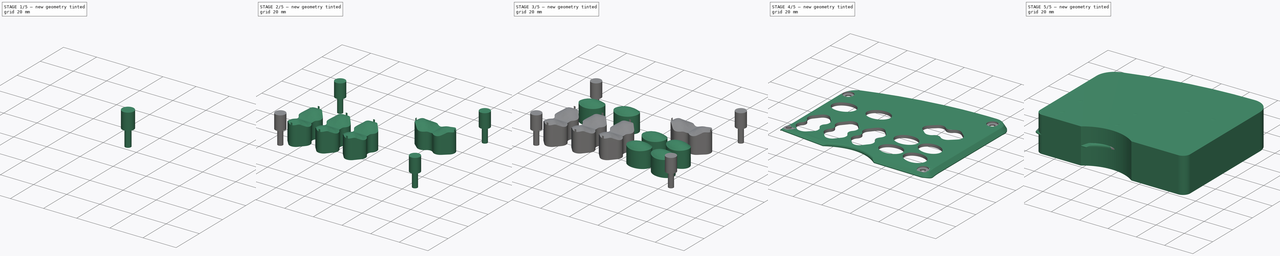
[diagram: build sequence overview — one tinted view per stage of 5, left to right]
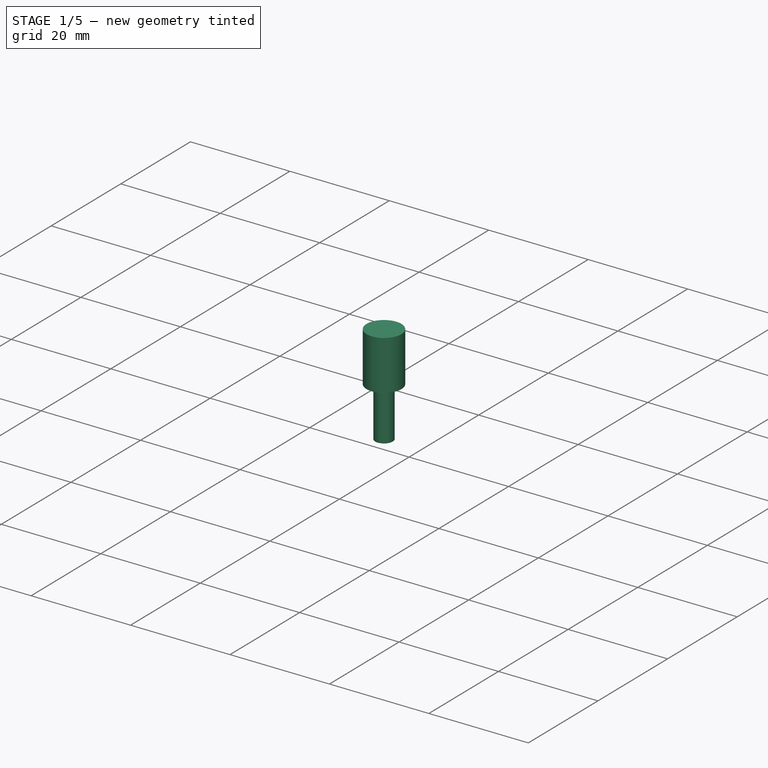
[diagram: stage 1 of 5 — iso view after this stage's code; geometry added in this stage tinted green]
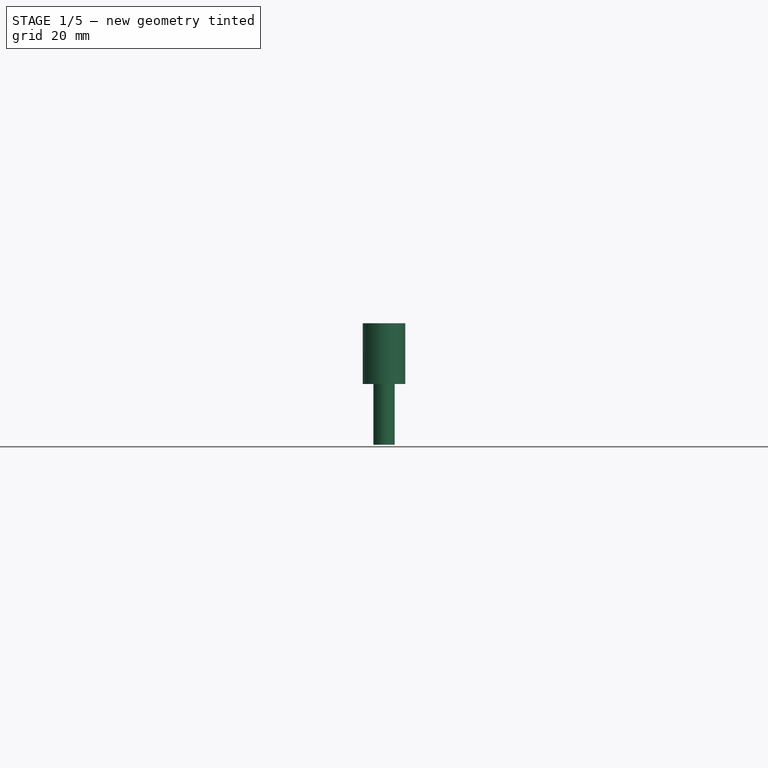
[diagram: stage 1 of 5 — front view after this stage's code; geometry added in this stage tinted green]
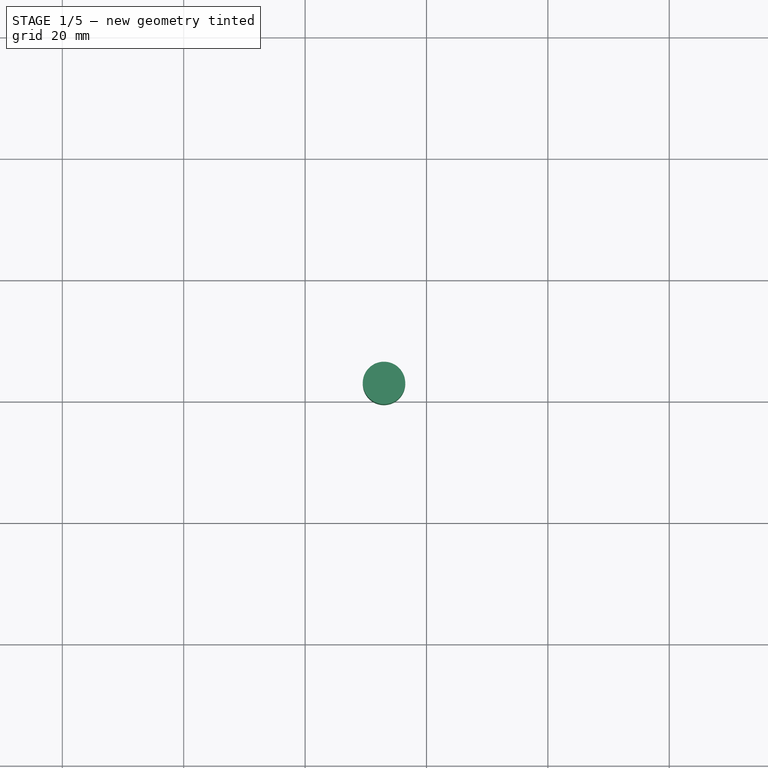
[diagram: stage 1 of 5 — top view after this stage's code; geometry added in this stage tinted green]
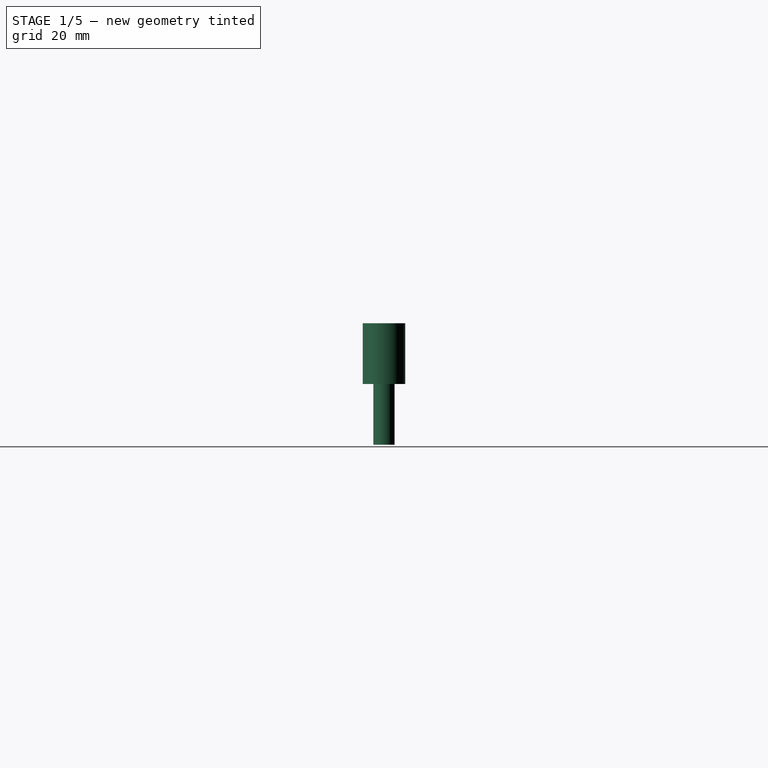
[diagram: stage 1 of 5 — right view after this stage's code; geometry added in this stage tinted green]
FCSTD DOCUMENT  (FreeCAD 0.16R6698 (Git))
Label: left_cover
License: All rights reserved
LicenseURL: http://en.wikipedia.org/wiki/All_rights_reserved
objects: Part::FeaturePython×14, Part::Feature×9, Sketcher::SketchObject×4, PartDesign::Pad×4, Part::MultiFuse×2, Part::Cut×2, Part::Chamfer×1, PartDesign::Fillet×1, App::DocumentObjectGroup×1, Part::Cylinder×1, Part::Mirroring×1
note: 43 computed .brp shape members not serialized (recipe doc carries the construction recipe); baked Part::Feature solids carry a one-line shape summary decoded from their .brp

FEATURE [App::DocumentObjectGroup] Group  label="assembly"
  Group = -> [left_buttons_01,Part__Feature005,Part__Feature]
FEATURE [Part::Cylinder] Cylinder
  Angle = 360
  Height = 10
  Placement = pos=(-45.88,20.86,-1) rot=(0,0,1;0rad)
  Radius = 1.75
FEATURE [Sketcher::SketchObject] Sketch004
  ExternalGeometry = -> [Cylinder]
  Placement = pos=(-45.88,20.86,9) rot=(0,0,1;0rad)
  Support = -> Cylinder [Face2]
  sketch-geometry (1):
    g0: Circle CenterX=0 CenterY=0 CenterZ=0 NormalX=0 NormalY=0 NormalZ=1 Radius=3.5
  constraints (2):
    c: Coincident(g0,g-1)
    c: Radius(g0) = 3.5
FEATURE [PartDesign::Pad] Pad003
  Length = 10
  Length2 = 100
  Placement = pos=(-45.88,20.86,-1) rot=(0,0,1;0rad)
  Sketch = -> Sketch004
  Type = 0
FEATURE [Part::FeaturePython] Clone029  label="Clone of Pad003"  # Draft clone (typed FeaturePython)
  Objects = -> [Pad003]
  Placement = pos=(45,35.25,-1) rot=(0,0,1;0rad)
  Scale = (1,1,1)
FEATURE [Part::FeaturePython] Clone030  label="Clone of Clone of Pad003"  # Draft clone (typed FeaturePython)
  Objects = -> [Clone029]
  Placement = pos=(46.98,-37.2,-1) rot=(0,0,1;0rad)
  Scale = (1,1,1)
FEATURE [Part::FeaturePython] Clone031  label="Clone of Clone of Clone of Pad003"  # Draft clone (typed FeaturePython)
  Objects = -> [Clone030]
  Placement = pos=(-47,-37.2,0.7) rot=(0,0,1;0rad)
  Scale = (1,1,1)
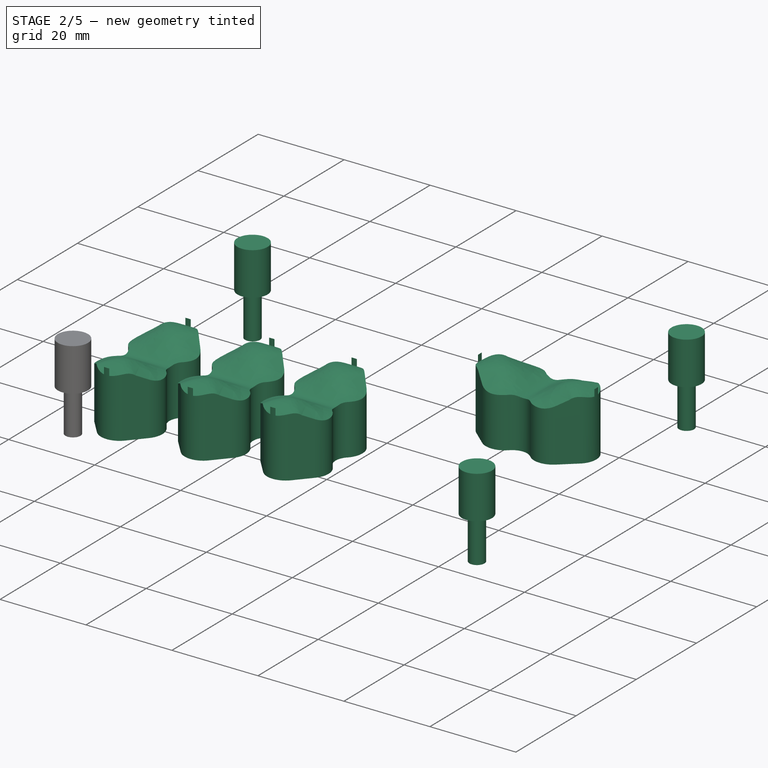
[diagram: stage 2 of 5 — iso view after this stage's code; geometry added in this stage tinted green]
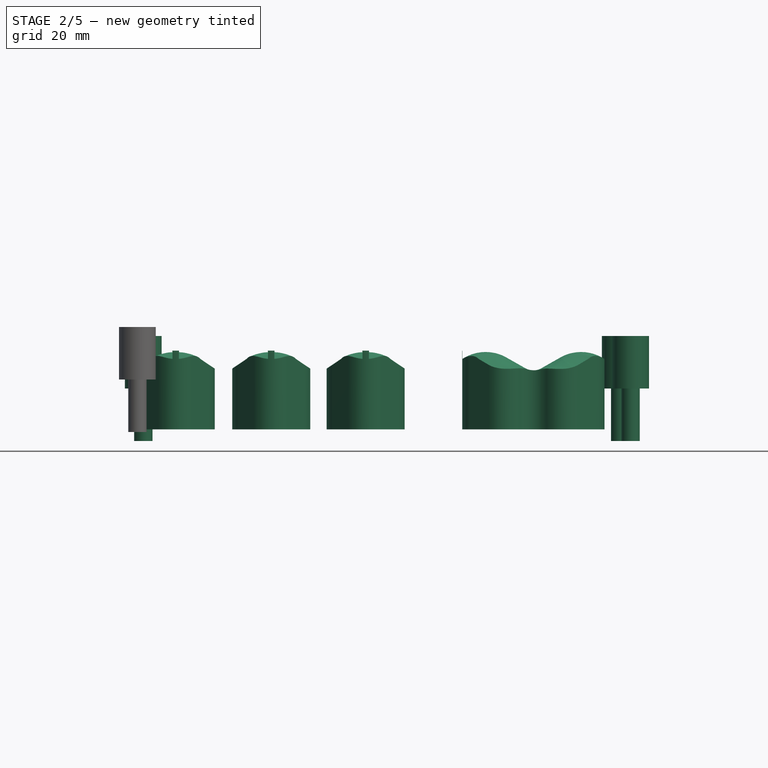
[diagram: stage 2 of 5 — front view after this stage's code; geometry added in this stage tinted green]
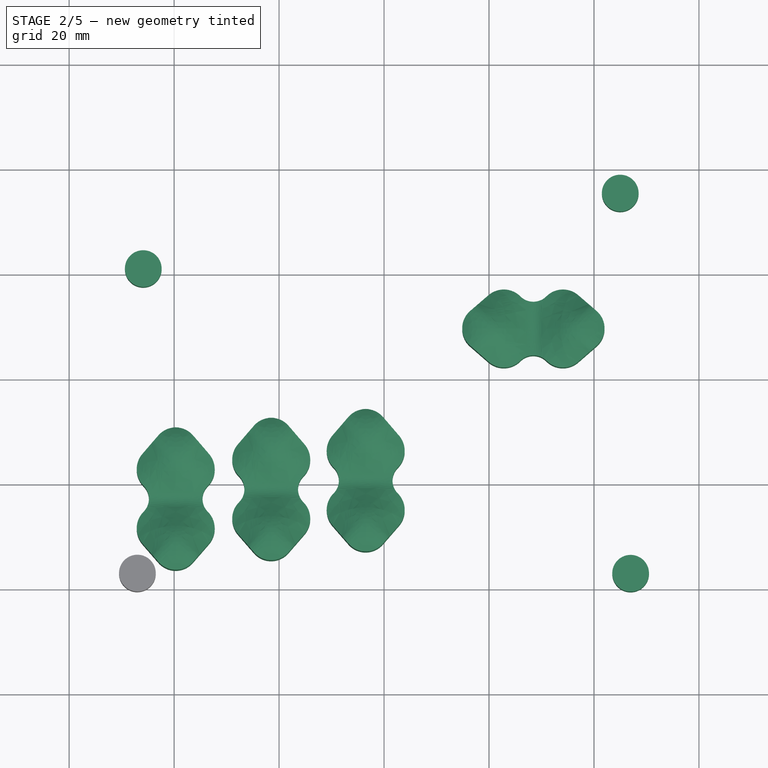
[diagram: stage 2 of 5 — top view after this stage's code; geometry added in this stage tinted green]
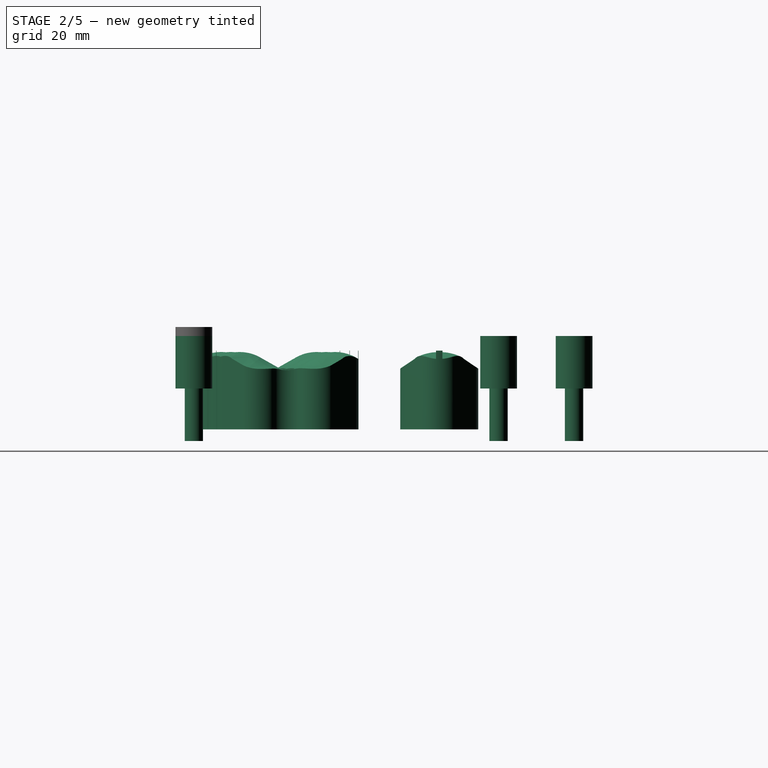
[diagram: stage 2 of 5 — right view after this stage's code; geometry added in this stage tinted green]
FEATURE [Part::FeaturePython] Clone  label="sw4"  # Draft clone (typed FeaturePython)
  Objects = -> [Part__Feature008]
  Placement = pos=(28.45,9.55,0) rot=(0,0,1;1.5708rad)
  Scale = (1,1,1)
FEATURE [Part::FeaturePython] Clone026  label="sw3"  # Draft clone (typed FeaturePython)
  Objects = -> [Part__Feature008]
  Placement = pos=(-3.5,-19.4,0) rot=(0,0,1;0rad)
  Scale = (1,1,1)
FEATURE [Part::FeaturePython] Clone027  label="sw2"  # Draft clone (typed FeaturePython)
  Objects = -> [Part__Feature008]
  Placement = pos=(-21.5,-21.07,0) rot=(0,0,1;0rad)
  Scale = (1,1,1)
FEATURE [Part::FeaturePython] Clone028  label="sw1"  # Draft clone (typed FeaturePython)
  Objects = -> [Part__Feature008]
  Placement = pos=(-39.7,-22.9,0) rot=(0,0,1;0rad)
  Scale = (1,1,1)
FEATURE [Part::MultiFuse] Fusion001
  Shapes = -> [Clone031,Clone030,Clone029,Pad003]
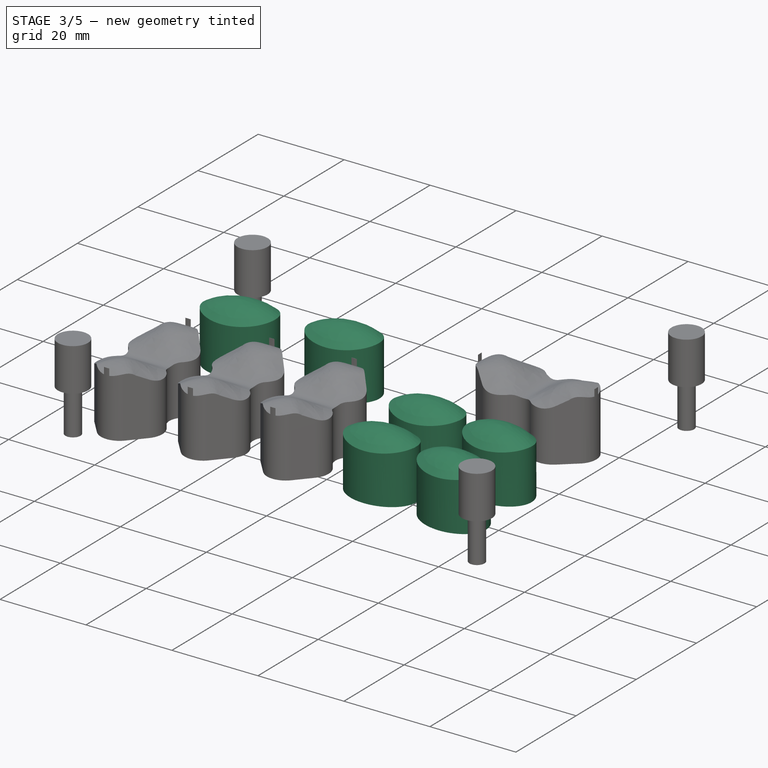
[diagram: stage 3 of 5 — iso view after this stage's code; geometry added in this stage tinted green]
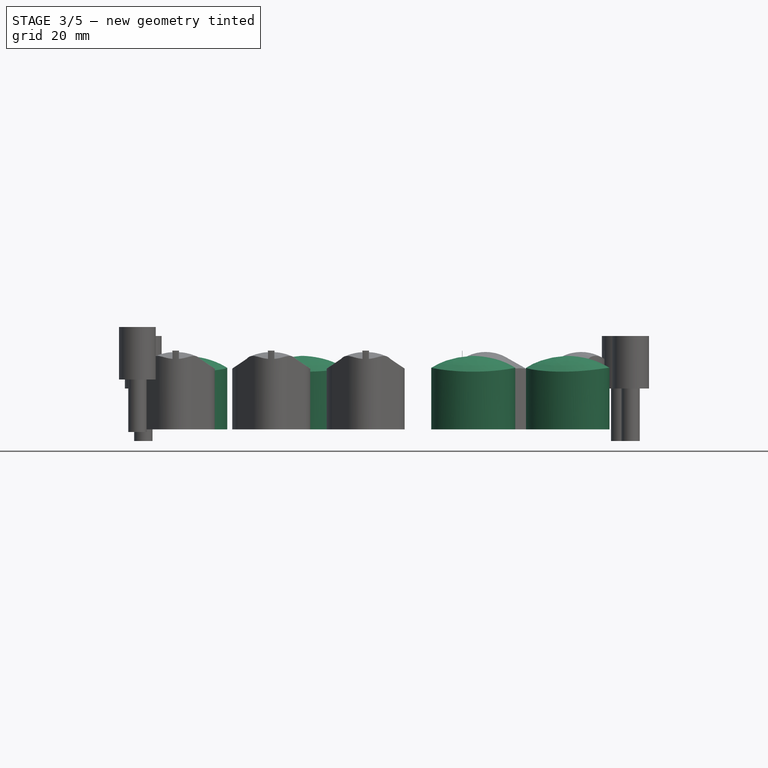
[diagram: stage 3 of 5 — front view after this stage's code; geometry added in this stage tinted green]
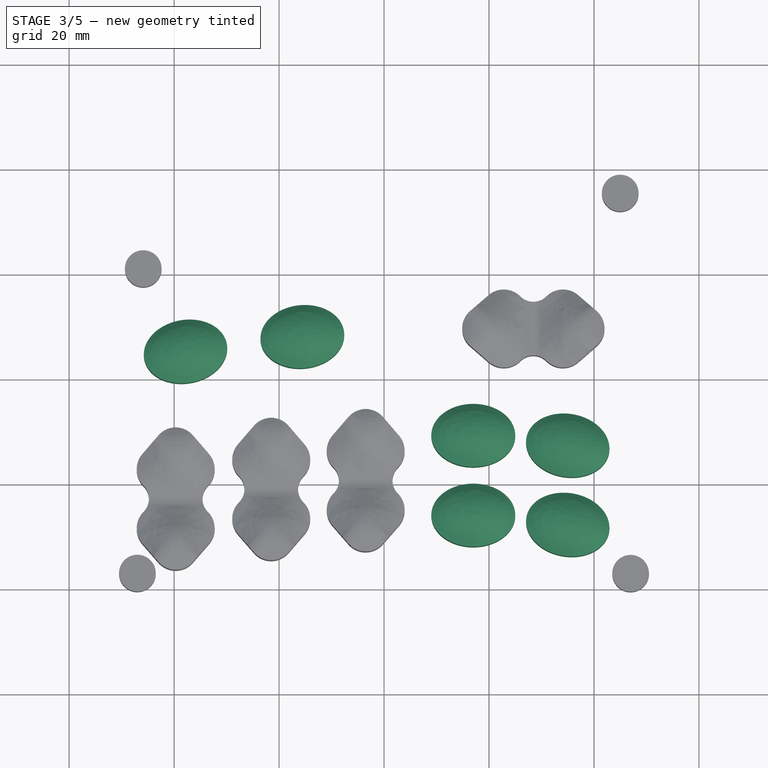
[diagram: stage 3 of 5 — top view after this stage's code; geometry added in this stage tinted green]
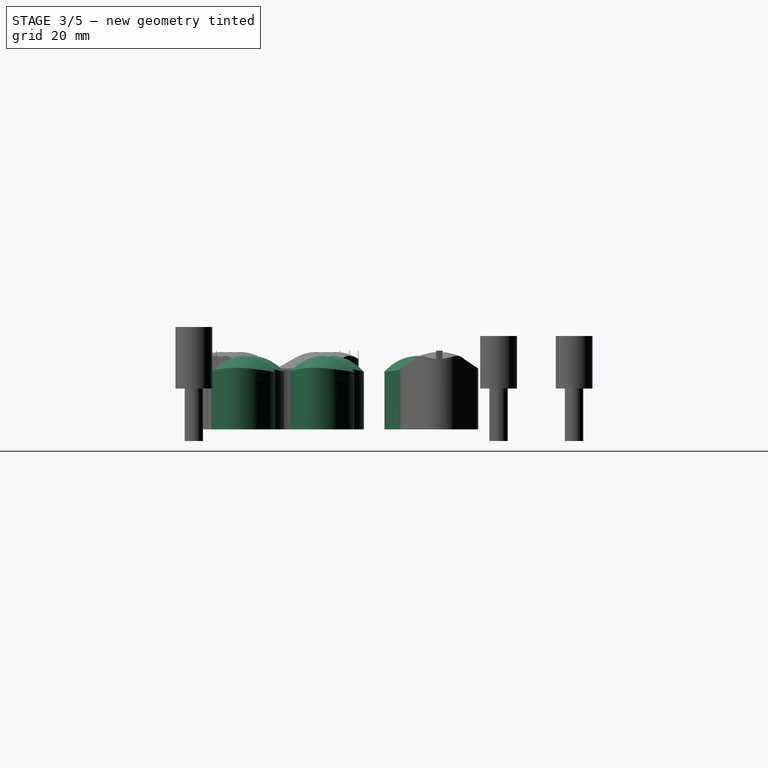
[diagram: stage 3 of 5 — right view after this stage's code; geometry added in this stage tinted green]
FEATURE [Part::Feature] Part__Feature007  label="but_hole_base"
  shape: bbox 34.77 x 29.5 x 14 mm, 4 faces (baked)
FEATURE [Part::Feature] Part__Feature008  label="sw_hole_base"
  shape: bbox 16 x 33.13 x 19.64 mm, 30 faces (baked)
FEATURE [Part::FeaturePython] Clone020  label="but1"  # Draft clone (typed FeaturePython)
  Objects = -> [Part__Feature007]
  Placement = pos=(35,-27.8,0) rot=(0,0,-1;0.174533rad)
  Scale = (1,1,1)
FEATURE [Part::FeaturePython] Clone021  label="but2"  # Draft clone (typed FeaturePython)
  Objects = -> [Part__Feature007]
  Placement = pos=(17,-10.8,0) rot=(0,0,1;0rad)
  Scale = (1,1,1)
FEATURE [Part::FeaturePython] Clone022  label="but3"  # Draft clone (typed FeaturePython)
  Objects = -> [Part__Feature007]
  Placement = pos=(17,-26,0) rot=(0,0,1;0rad)
  Scale = (1,1,1)
FEATURE [Part::FeaturePython] Clone023  label="but4"  # Draft clone (typed FeaturePython)
  Objects = -> [Part__Feature007]
  Placement = pos=(35,-12.7,0) rot=(0,0,-1;0.174533rad)
  Scale = (1,1,1)
FEATURE [Part::FeaturePython] Clone024  label="but5"  # Draft clone (typed FeaturePython)
  Objects = -> [Part__Feature007]
  Placement = pos=(-15.57,8.02,0) rot=(0,0,1;0.10472rad)
  Scale = (1,1,1)
FEATURE [Part::FeaturePython] Clone025  label="but6"  # Draft clone (typed FeaturePython)
  Objects = -> [Part__Feature007]
  Placement = pos=(-37.83,5.2,0) rot=(0,0,1;0.174533rad)
  Scale = (1,1,1)
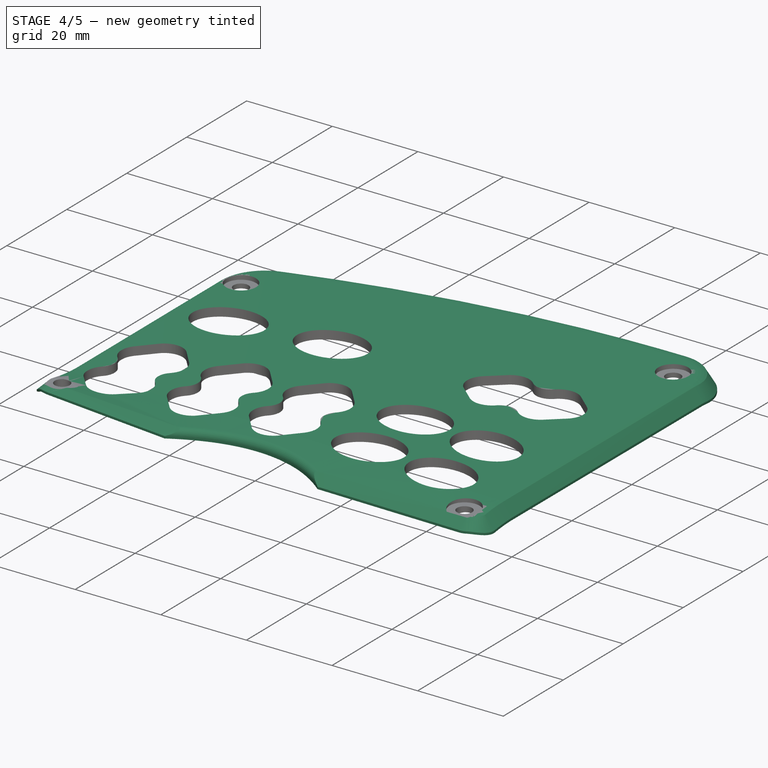
[diagram: stage 4 of 5 — iso view after this stage's code; geometry added in this stage tinted green]
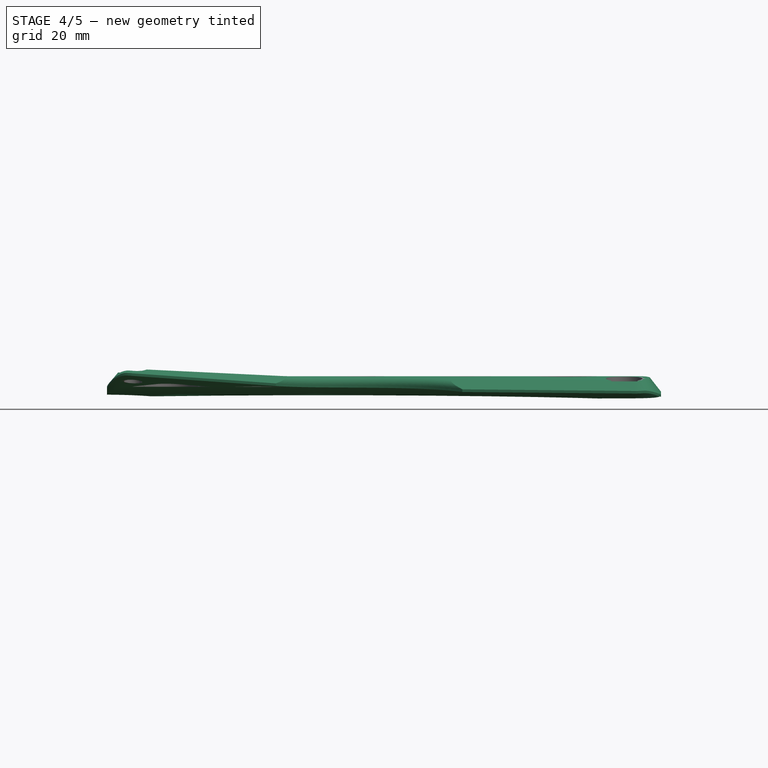
[diagram: stage 4 of 5 — front view after this stage's code; geometry added in this stage tinted green]
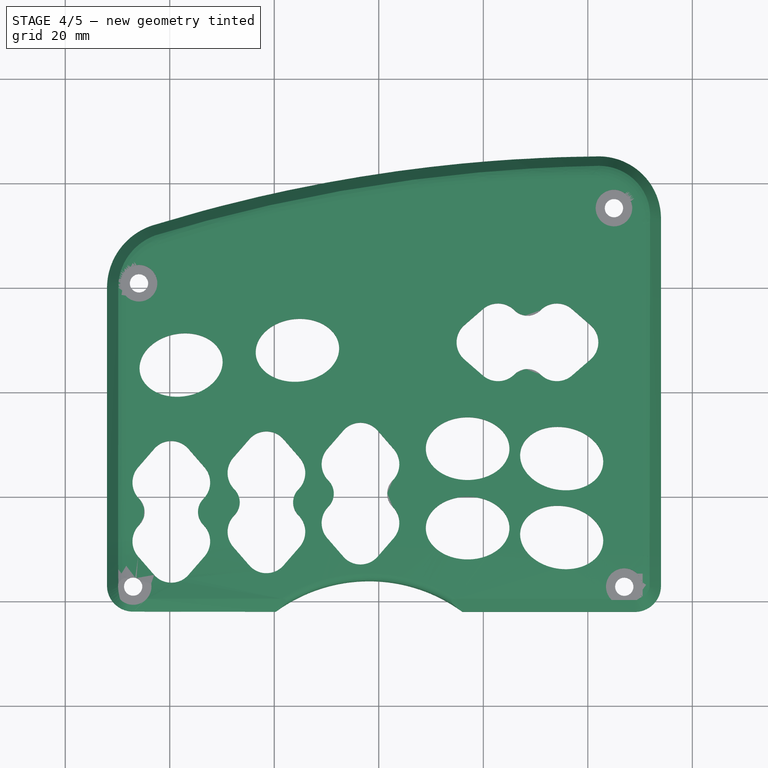
[diagram: stage 4 of 5 — top view after this stage's code; geometry added in this stage tinted green]
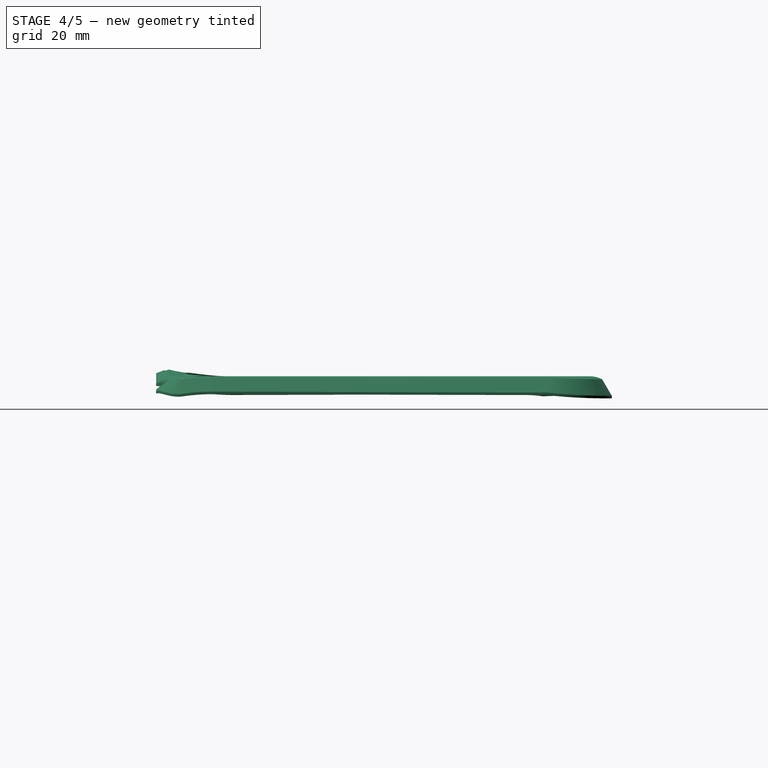
[diagram: stage 4 of 5 — right view after this stage's code; geometry added in this stage tinted green]
FEATURE [Part::Feature] Part__Feature005  label="left_collar"
  shape: bbox 271.3 x 302.6 x 177.8 mm, 90 faces (baked)
FEATURE [Part::Feature] Part__Feature006  label="collar_top_mold"
  Placement = pos=(0,0,2) rot=(0,0,1;0rad)
  shape: bbox 162.3 x 157.3 x 51.02 mm, 25 faces (baked)
FEATURE [Part::Feature] Solid  label="cover_plane"
  shape: bbox 162.3 x 157.3 x 53.03 mm, 38 faces (baked)
FEATURE [Part::Chamfer] Chamfer
  Base = -> Solid
  Edges = 1 edges: [Edge31 r1=2.5 r2=1.5]
FEATURE [PartDesign::Fillet] Fillet
  Base = -> Chamfer [Edge53]
  Radius = 1.5
FEATURE [Part::MultiFuse] Fusion
  Shapes = -> [Clone020,Clone,Clone026,Clone027,Clone025,Clone021,Clone023,Clone024,Clone022,Clone028]
FEATURE [Part::Cut] Cut
  Base = -> Fillet
  Tool = -> Fusion
FEATURE [Part::Cut] Cut001
  Base = -> Cut
  Tool = -> Fusion001
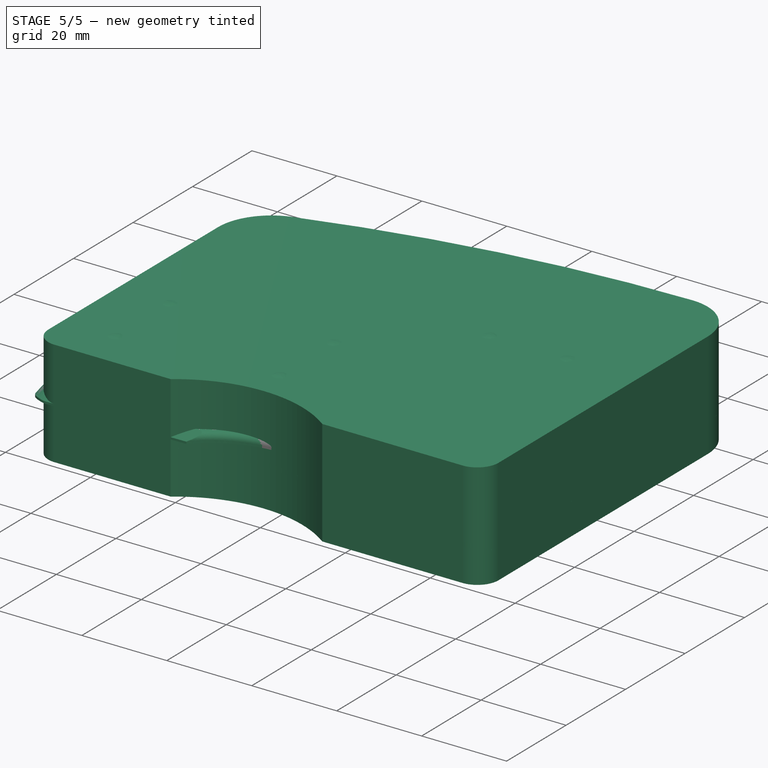
[diagram: stage 5 of 5 — iso view after this stage's code; geometry added in this stage tinted green]
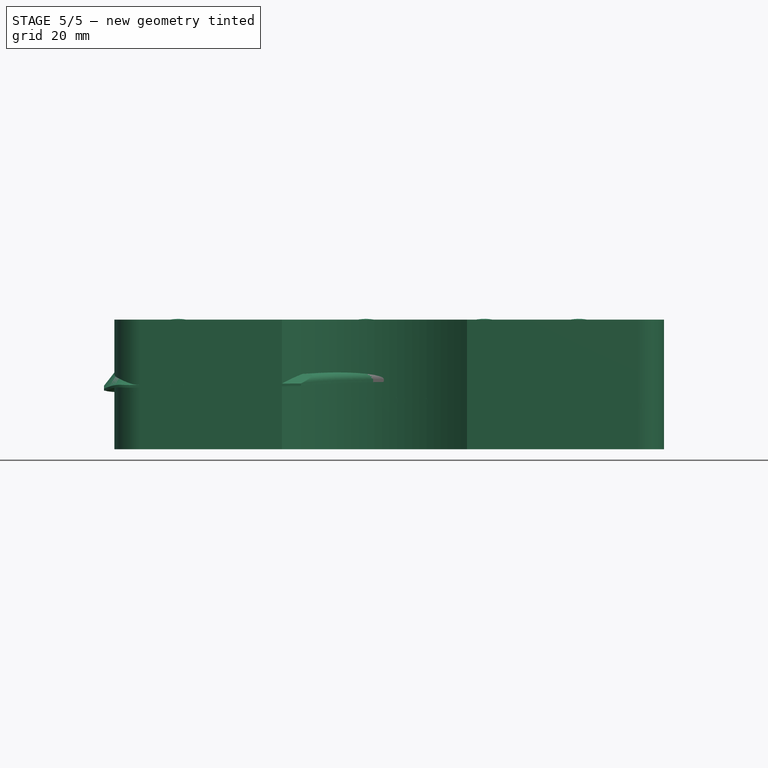
[diagram: stage 5 of 5 — front view after this stage's code; geometry added in this stage tinted green]
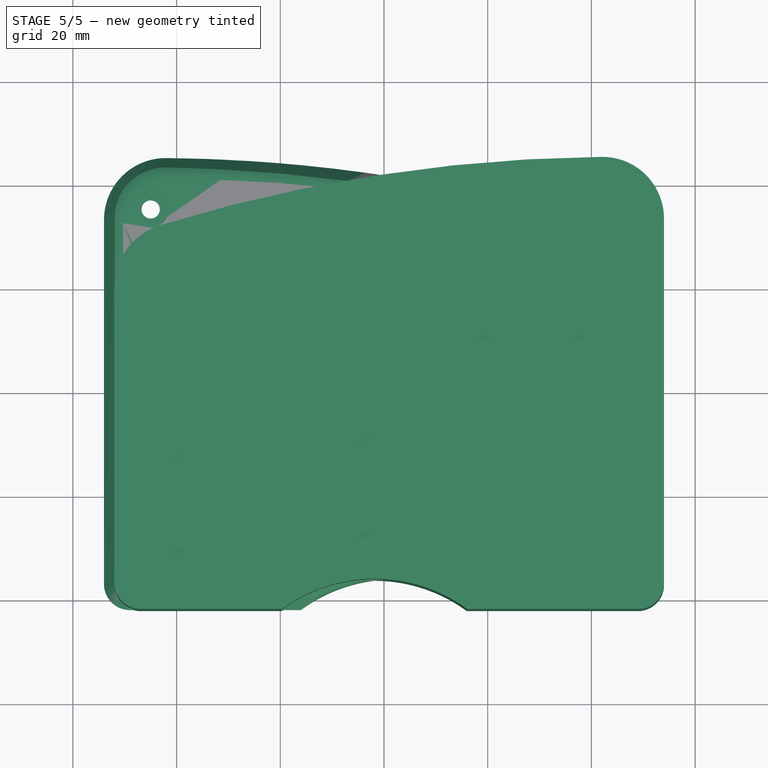
[diagram: stage 5 of 5 — top view after this stage's code; geometry added in this stage tinted green]
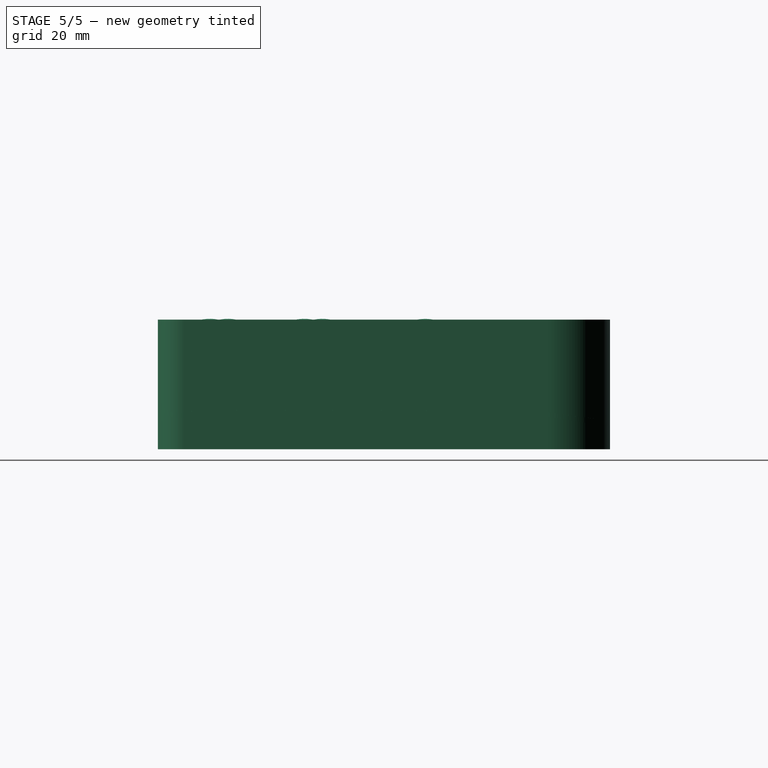
[diagram: stage 5 of 5 — right view after this stage's code; geometry added in this stage tinted green]
FEATURE [Part::Feature] Part__Feature  label="pcb"
  Placement = pos=(0,0,-3.7) rot=(0,0,1;0rad)
  shape: bbox 99.95 x 80.42 x 43.3 mm, 3770 faces (baked)
FEATURE [Part::Feature] Part__Feature001  label="but_base"
  Placement = pos=(0,0,-0.4) rot=(0,0,1;0rad)
  shape: bbox 34.77 x 29.5 x 14 mm, 4 faces (baked)
FEATURE [Part::Feature] Part__Feature002  label="sw_base"
  Placement = pos=(0,0,-0.4) rot=(0,0,1;0rad)
  shape: bbox 14 x 33.13 x 18.25 mm, 24 faces (baked)
FEATURE [Part::Feature] Solid001
  shape: bbox 162.3 x 157.3 x 51.03 mm, 25 faces (baked)
FEATURE [Sketcher::SketchObject] Sketch002
  Placement = pos=(0,0,-5.2) rot=(0,0,1;0rad)
  sketch-geometry (10):
    g0: LineSegment StartX=54 StartY=-37 StartZ=0 EndX=54 EndY=33.3 EndZ=0
    g1: ArcOfCircle CenterX=42.1 CenterY=33.3 CenterZ=0 NormalX=0 NormalY=0 NormalZ=1 Radius=11.9 StartAngle=0 EndAngle=1.58019
    g2: ArcOfCircle CenterX=-39.4 CenterY=20 CenterZ=0 NormalX=0 NormalY=0 NormalZ=1 Radius=12.6 StartAngle=1.86815 EndAngle=3.14159
    g3: LineSegment StartX=-52 StartY=20 StartZ=0 EndX=-52 EndY=-37 EndZ=0
    g4: ArcOfCircle CenterX=44.8063 CenterY=-254.787 CenterZ=0 NormalX=0 NormalY=0 NormalZ=1 Radius=300 StartAngle=1.58019 EndAngle=1.86815
    g5: ArcOfCircle CenterX=-1.85 CenterY=-66.3602 CenterZ=0 NormalX=0 NormalY=0 NormalZ=1 Radius=30.2 StartAngle=0.938424 EndAngle=2.20317
    g6: LineSegment StartX=49 StartY=-42 StartZ=0 EndX=16 EndY=-42 EndZ=0
    g7: LineSegment StartX=-19.7 StartY=-42 StartZ=0 EndX=-47 EndY=-42 EndZ=0
    g8: ArcOfCircle CenterX=-47 CenterY=-37 CenterZ=0 NormalX=0 NormalY=0 NormalZ=1 Radius=5 StartAngle=3.14159 EndAngle=4.71239
    g9: ArcOfCircle CenterX=49 CenterY=-37 CenterZ=0 NormalX=0 NormalY=0 NormalZ=1 Radius=5 StartAngle=4.71239 EndAngle=6.28319
  constraints (31):
    c: Vertical(g0)
    c: Tangent(g0,g1) = -1.5708
    c: Coincident(g2,g3)
    c: Vertical(g3)
    c: Tangent(g2,g3)
    c: Coincident(g4,g2)
    c: Coincident(g4,g1)
    c: Tangent(g1,g4)
    c: Tangent(g4,g2)
    c: DistanceY(g-1,g2) = 20
    c: DistanceX(g2,g-1) = 39.4
    c: DistanceY(g-1,g1) = 33.3
    c: DistanceX(g-1,g1) = 42.1
    c: Radius(g4) = 300
    c: Coincident(g6,g5)
    c: Horizontal(g6)
    c: Coincident(g7,g5)
    c: Horizontal(g7)
    c: DistanceX(g5,g-1) = 19.7
    c: DistanceX(g-1,g5) = 16
    c: Radius(g5) = 30.2
    c: Tangent(g3,g8) = -1.5708
    c: Tangent(g7,g8) = 1.5708
    c: DistanceX(g3,g-1) = 52
    c: DistanceY(g7,g-1) = 42
    c: Radius(g8) = 5
    c: Tangent(g6,g9) = 1.5708
    c: Tangent(g0,g9) = -1.5708
    c: DistanceX(g-1,g0) = 54
    c: DistanceY(g6,g-1) = 42
    c: Equal(g9,g8)
FEATURE [PartDesign::Pad] Pad001
  Length = 25
  Length2 = 100
  Placement = pos=(0,0,-5.2) rot=(0,0,1;0rad)
  Sketch = -> Sketch002
  Type = 0
FEATURE [Part::FeaturePython] left_buttons_01  label="left_buttons"  # a2plus imported part (geometry in sourceFile) (typed FeaturePython)
  fixedPosition = true
  sourceFile = <userpath>/uw/keypad/hw/left_buttons.fcstd
  timeLastImport = 1.48973e+09
  updateColors = true
FEATURE [Sketcher::SketchObject] Sketch
  sketch-geometry (4):
    g0: Circle CenterX=-45.88 CenterY=20.86 CenterZ=0 NormalX=0 NormalY=0 NormalZ=1 Radius=1.75
    g1: Circle CenterX=-47 CenterY=-37.2 CenterZ=0 NormalX=0 NormalY=0 NormalZ=1 Radius=1.75
    g2: Circle CenterX=46.98 CenterY=-37.2 CenterZ=0 NormalX=0 NormalY=0 NormalZ=1 Radius=1.75
    g3: Circle CenterX=45 CenterY=35.25 CenterZ=0 NormalX=0 NormalY=0 NormalZ=1 Radius=1.75
  constraints (12):
    c: Radius(g3) = 1.75
    c: Equal(g3,g0)
    c: Equal(g0,g1)
    c: Equal(g1,g2)
    c: DistanceX(g-1,g3) = 45
    c: DistanceY(g-1,g3) = 35.25
    c: DistanceY(g-1,g0) = 20.86
    c: DistanceX(g0,g-1) = 45.88
    c: DistanceY(g1,g-1) = 37.2
    c: DistanceX(g1,g-1) = 47
    c: DistanceY(g2,g-1) = 37.2
    c: DistanceX(g-1,g2) = 46.98
FEATURE [PartDesign::Pad] Pad
  Length = 8.5
  Length2 = 100
  Sketch = -> Sketch
  Type = 0
FEATURE [Sketcher::SketchObject] Sketch003
  Placement = pos=(0,0,8.5) rot=(0,0,1;0rad)
  sketch-geometry (4):
    g0: Circle CenterX=-45.88 CenterY=20.86 CenterZ=0 NormalX=0 NormalY=0 NormalZ=1 Radius=2.5
    g1: Circle CenterX=-47 CenterY=-37.2 CenterZ=0 NormalX=0 NormalY=0 NormalZ=1 Radius=2.5
    g2: Circle CenterX=46.98 CenterY=-37.2 CenterZ=0 NormalX=0 NormalY=0 NormalZ=1 Radius=2.5
    g3: Circle CenterX=45 CenterY=35.25 CenterZ=0 NormalX=0 NormalY=0 NormalZ=1 Radius=2.5
  constraints (4):
    c: Equal(g3,g0)
    c: Equal(g0,g1)
    c: Equal(g1,g2)
    c: Radius(g2) = 2.5
FEATURE [PartDesign::Pad] Pad002
  Length = 10
  Length2 = 100
  Placement = pos=(0,0,8.5) rot=(0,0,1;0rad)
  Sketch = -> Sketch003
  Type = 0
FEATURE [Part::Mirroring] Part__Mirroring  label="right_mirror"
  Base = (0,0,0)
  Normal = (1,0,0)
  Source = -> Cut001
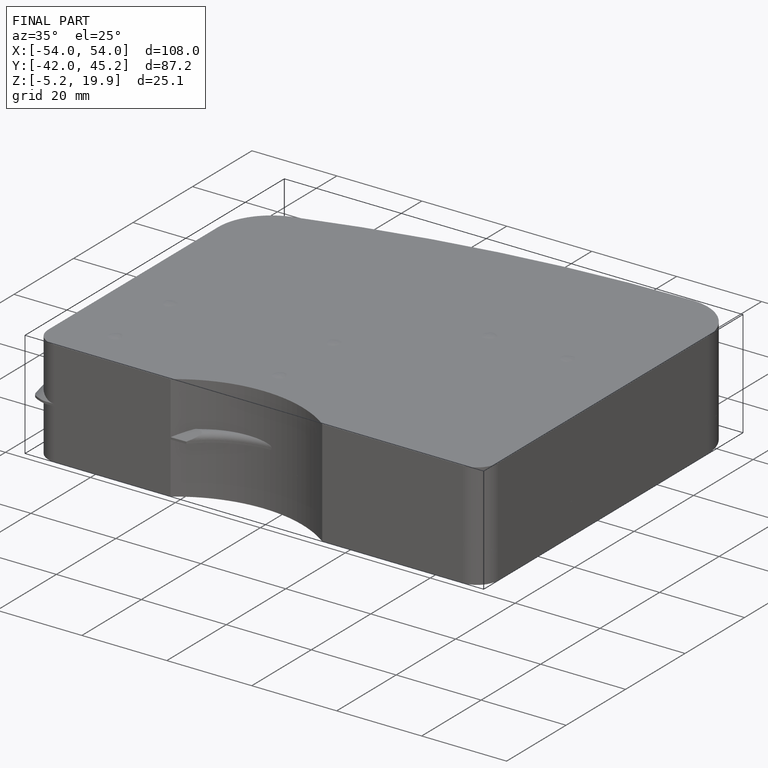
[diagram: finished part — iso view with bounding-box wireframe]
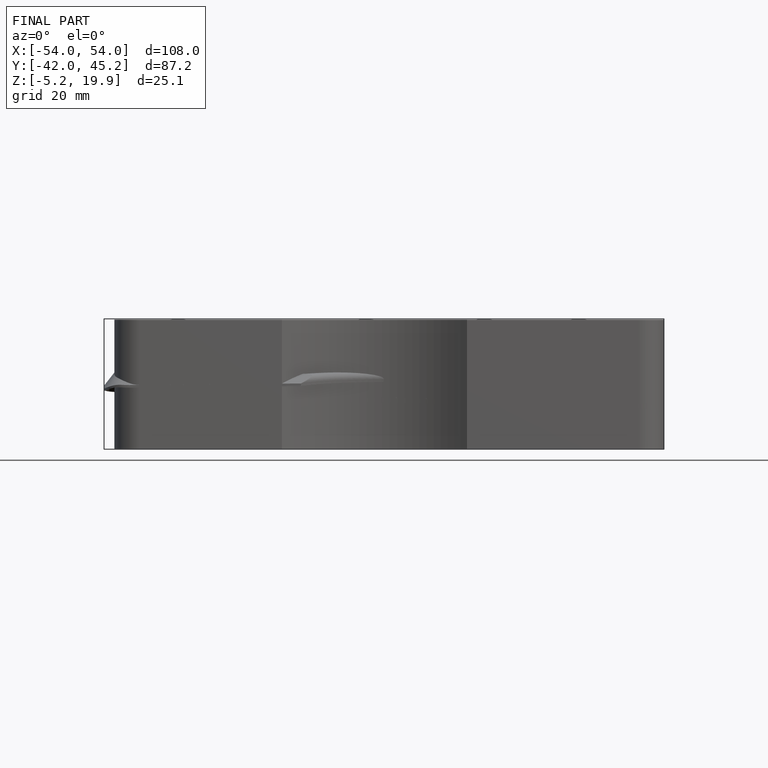
[diagram: finished part — front view with bounding-box wireframe]
